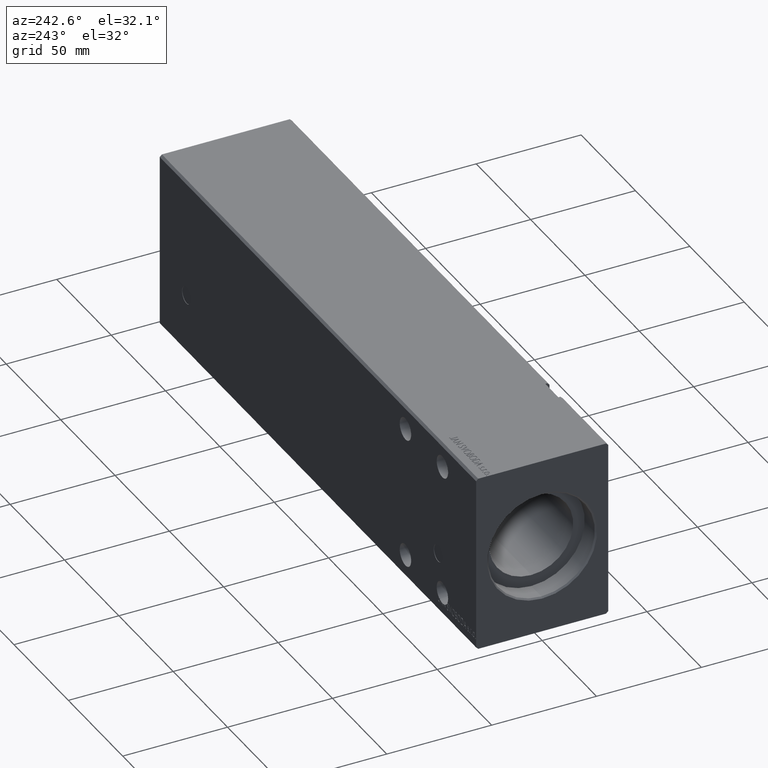
[diagram: clean part render]
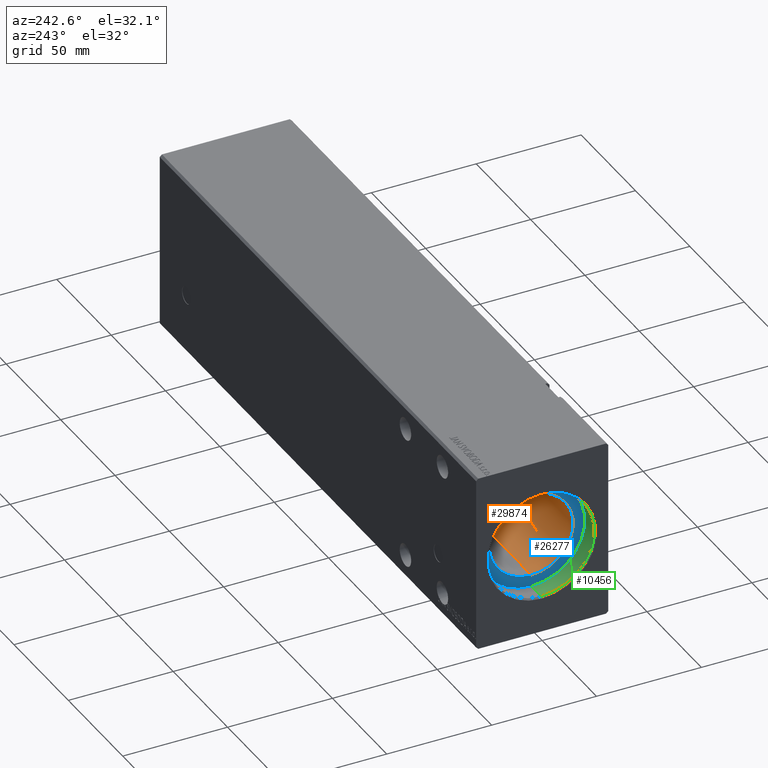
[diagram: same view with three faces highlighted in distinct colors, each labeled with its STEP entity id]
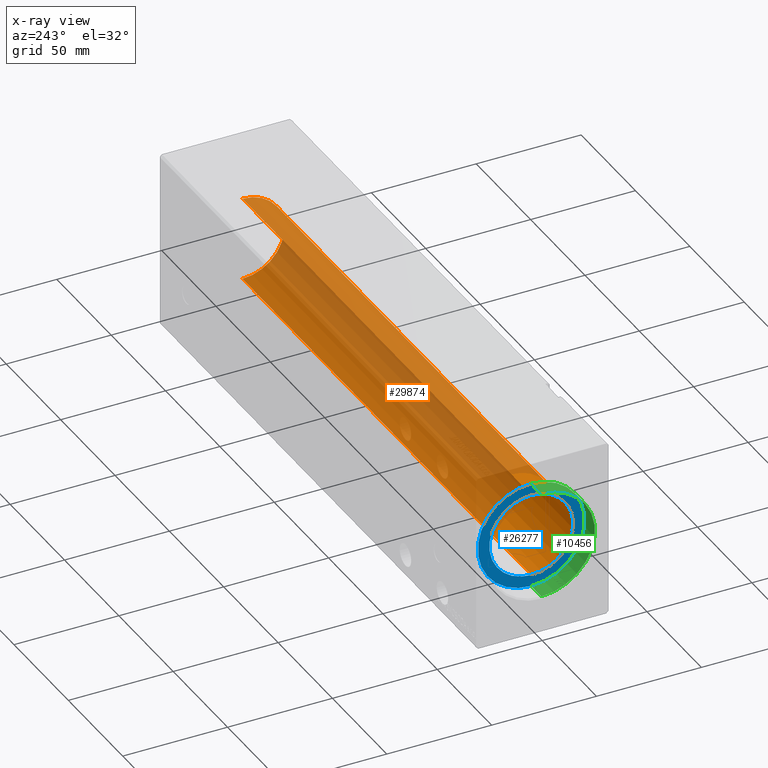
[diagram: x-ray of the same camera — body ghosted, the three highlighted faces saturated]
A machine part, auxiliary view with three faces highlighted in distinct colors.
The next image is the same camera in x-ray (body ghosted, the three faces saturated) — at least one of them is partly hidden behind the body in this view.
Their STEP definitions:

[orange] entity #29874 — the highlighted cylindrical surface (partial cylindrical patch) has radius 20 mm, axis along (-1, -0, -0).
#708 = EDGE_CURVE ( 'NONE', #29816, #12647, #29985, .T. ) ;
#1408 = CYLINDRICAL_SURFACE ( 'NONE', #4843, 20.00000000000000000 ) ;
#3083 = AXIS2_PLACEMENT_3D ( 'NONE', #9902, #9277, #35863 ) ;
#4251 = CIRCLE ( 'NONE', #21992, 20.00000000000000000 ) ;
#4824 = CARTESIAN_POINT ( 'NONE',  ( 275.6999999999999886, 0.000000000000000000, 0.000000000000000000 ) ) ;
#4843 = AXIS2_PLACEMENT_3D ( 'NONE', #4824, #30400, #37409 ) ;
#5266 = VECTOR ( 'NONE', #27009, 1000.000000000000000 ) ;
#7926 = CARTESIAN_POINT ( 'NONE',  ( 275.6999999999999886, 0.000000000000000000, 20.00000000000000000 ) ) ;
#9207 = CIRCLE ( 'NONE', #3083, 20.00000000000000000 ) ;
#9277 = DIRECTION ( 'NONE',  ( -1.000000000000000000, 0.000000000000000000, 0.000000000000000000 ) ) ;
#9663 = VECTOR ( 'NONE', #11561, 1000.000000000000000 ) ;
#9902 = CARTESIAN_POINT ( 'NONE',  ( 275.6999999999999886, 0.000000000000000000, 0.000000000000000000 ) ) ;
#10716 = ORIENTED_EDGE ( 'NONE', *, *, #27186, .F. ) ;
#11561 = DIRECTION ( 'NONE',  ( -1.000000000000000000, -0.000000000000000000, -0.000000000000000000 ) ) ;
#12584 = VERTEX_POINT ( 'NONE', #33227 ) ;
#12647 = VERTEX_POINT ( 'NONE', #21096 ) ;
#18264 = FACE_OUTER_BOUND ( 'NONE', #41758, .T. ) ;
#18644 = ORIENTED_EDGE ( 'NONE', *, *, #708, .T. ) ;
#21096 = CARTESIAN_POINT ( 'NONE',  ( 10.00000000000000888, 2.449293598294706513E-15, -20.00000000000000000 ) ) ;
#21992 = AXIS2_PLACEMENT_3D ( 'NONE', #23041, #35997, #34477 ) ;
#23041 = CARTESIAN_POINT ( 'NONE',  ( 10.00000000000000888, 0.000000000000000000, 0.000000000000000000 ) ) ;
#26806 = CARTESIAN_POINT ( 'NONE',  ( 275.6999999999999886, 2.449293598294706513E-15, -20.00000000000000000 ) ) ;
#27009 = DIRECTION ( 'NONE',  ( -1.000000000000000000, -0.000000000000000000, -0.000000000000000000 ) ) ;
#27186 = EDGE_CURVE ( 'NONE', #12584, #39690, #37095, .T. ) ;
#27213 = ORIENTED_EDGE ( 'NONE', *, *, #34000, .T. ) ;
#29816 = VERTEX_POINT ( 'NONE', #36763 ) ;
#29874 = ADVANCED_FACE ( 'NONE', ( #18264 ), #1408, .F. ) ;
#29985 = LINE ( 'NONE', #26806, #5266 ) ;
#30400 = DIRECTION ( 'NONE',  ( -1.000000000000000000, -0.000000000000000000, -0.000000000000000000 ) ) ;
#32941 = ORIENTED_EDGE ( 'NONE', *, *, #41781, .F. ) ;
#33227 = CARTESIAN_POINT ( 'NONE',  ( 275.6999999999999886, 0.000000000000000000, 20.00000000000000000 ) ) ;
#34000 = EDGE_CURVE ( 'NONE', #12647, #39690, #4251, .T. ) ;
#34477 = DIRECTION ( 'NONE',  ( 0.000000000000000000, 0.000000000000000000, 1.000000000000000000 ) ) ;
#35863 = DIRECTION ( 'NONE',  ( 0.000000000000000000, 0.000000000000000000, 1.000000000000000000 ) ) ;
#35997 = DIRECTION ( 'NONE',  ( -1.000000000000000000, 0.000000000000000000, 0.000000000000000000 ) ) ;
#36763 = CARTESIAN_POINT ( 'NONE',  ( 275.6999999999999886, 2.449293598294706513E-15, -20.00000000000000000 ) ) ;
#37095 = LINE ( 'NONE', #7926, #9663 ) ;
#37409 = DIRECTION ( 'NONE',  ( 0.000000000000000000, 0.000000000000000000, 1.000000000000000000 ) ) ;
#38803 = CARTESIAN_POINT ( 'NONE',  ( 10.00000000000000888, 0.000000000000000000, 20.00000000000000000 ) ) ;
#39690 = VERTEX_POINT ( 'NONE', #38803 ) ;
#41758 = EDGE_LOOP ( 'NONE', ( #32941, #18644, #27213, #10716 ) ) ;
#41781 = EDGE_CURVE ( 'NONE', #29816, #12584, #9207, .T. ) ;

[blue] entity #26277 — the highlighted planar face has unit normal (-1, 0, 0).
#1348 = CARTESIAN_POINT ( 'NONE',  ( 10.00000000000000000, 0.000000000000000000, 0.000000000000000000 ) ) ;
#1369 = DIRECTION ( 'NONE',  ( -1.000000000000000000, 0.000000000000000000, 0.000000000000000000 ) ) ;
#2161 = EDGE_CURVE ( 'NONE', #11304, #10718, #28446, .T. ) ;
#4117 = DIRECTION ( 'NONE',  ( 0.000000000000000000, 0.000000000000000000, 1.000000000000000000 ) ) ;
#4251 = CIRCLE ( 'NONE', #21992, 20.00000000000000000 ) ;
#4666 = AXIS2_PLACEMENT_3D ( 'NONE', #37159, #1369, #14398 ) ;
#4871 = CIRCLE ( 'NONE', #29403, 25.50000000000000000 ) ;
#5434 = EDGE_CURVE ( 'NONE', #39690, #12647, #17614, .T. ) ;
#5812 = EDGE_LOOP ( 'NONE', ( #29058, #10500 ) ) ;
#7530 = DIRECTION ( 'NONE',  ( -1.000000000000000000, 0.000000000000000000, 0.000000000000000000 ) ) ;
#8400 = FACE_OUTER_BOUND ( 'NONE', #5812, .T. ) ;
#10262 = CARTESIAN_POINT ( 'NONE',  ( 10.00000000000000000, 0.000000000000000000, 0.000000000000000000 ) ) ;
#10500 = ORIENTED_EDGE ( 'NONE', *, *, #31909, .T. ) ;
#10718 = VERTEX_POINT ( 'NONE', #16021 ) ;
#11304 = VERTEX_POINT ( 'NONE', #30298 ) ;
#12647 = VERTEX_POINT ( 'NONE', #21096 ) ;
#13473 = DIRECTION ( 'NONE',  ( -1.000000000000000000, 0.000000000000000000, 0.000000000000000000 ) ) ;
#14373 = DIRECTION ( 'NONE',  ( -1.000000000000000000, 0.000000000000000000, 0.000000000000000000 ) ) ;
#14398 = DIRECTION ( 'NONE',  ( 0.000000000000000000, 0.000000000000000000, 1.000000000000000000 ) ) ;
#14598 = DIRECTION ( 'NONE',  ( 0.000000000000000000, 0.000000000000000000, 1.000000000000000000 ) ) ;
#16021 = CARTESIAN_POINT ( 'NONE',  ( 10.00000000000000000, 3.122849337825750222E-15, -25.50000000000000000 ) ) ;
#17360 = PLANE ( 'NONE',  #25637 ) ;
#17386 = ORIENTED_EDGE ( 'NONE', *, *, #5434, .F. ) ;
#17614 = CIRCLE ( 'NONE', #4666, 20.00000000000000000 ) ;
#21096 = CARTESIAN_POINT ( 'NONE',  ( 10.00000000000000888, 2.449293598294706513E-15, -20.00000000000000000 ) ) ;
#21848 = ORIENTED_EDGE ( 'NONE', *, *, #34000, .F. ) ;
#21992 = AXIS2_PLACEMENT_3D ( 'NONE', #23041, #35997, #34477 ) ;
#23041 = CARTESIAN_POINT ( 'NONE',  ( 10.00000000000000888, 0.000000000000000000, 0.000000000000000000 ) ) ;
#25637 = AXIS2_PLACEMENT_3D ( 'NONE', #1348, #14373, #14598 ) ;
#26277 = ADVANCED_FACE ( 'NONE', ( #33944, #8400 ), #17360, .T. ) ;
#26415 = AXIS2_PLACEMENT_3D ( 'NONE', #10262, #13473, #36233 ) ;
#28446 = CIRCLE ( 'NONE', #26415, 25.50000000000000000 ) ;
#29058 = ORIENTED_EDGE ( 'NONE', *, *, #2161, .T. ) ;
#29403 = AXIS2_PLACEMENT_3D ( 'NONE', #32900, #7530, #4117 ) ;
#30298 = CARTESIAN_POINT ( 'NONE',  ( 10.00000000000000000, 0.000000000000000000, 25.50000000000000000 ) ) ;
#31270 = EDGE_LOOP ( 'NONE', ( #17386, #21848 ) ) ;
#31909 = EDGE_CURVE ( 'NONE', #10718, #11304, #4871, .T. ) ;
#32900 = CARTESIAN_POINT ( 'NONE',  ( 10.00000000000000000, 0.000000000000000000, 0.000000000000000000 ) ) ;
#33944 = FACE_BOUND ( 'NONE', #31270, .T. ) ;
#34000 = EDGE_CURVE ( 'NONE', #12647, #39690, #4251, .T. ) ;
#34477 = DIRECTION ( 'NONE',  ( 0.000000000000000000, 0.000000000000000000, 1.000000000000000000 ) ) ;
#35997 = DIRECTION ( 'NONE',  ( -1.000000000000000000, 0.000000000000000000, 0.000000000000000000 ) ) ;
#36233 = DIRECTION ( 'NONE',  ( 0.000000000000000000, 0.000000000000000000, 1.000000000000000000 ) ) ;
#37159 = CARTESIAN_POINT ( 'NONE',  ( 10.00000000000000888, 0.000000000000000000, 0.000000000000000000 ) ) ;
#38803 = CARTESIAN_POINT ( 'NONE',  ( 10.00000000000000888, 0.000000000000000000, 20.00000000000000000 ) ) ;
#39690 = VERTEX_POINT ( 'NONE', #38803 ) ;

[green] entity #10456 — the highlighted cylindrical surface (partial cylindrical patch) has radius 25.5 mm, axis along (-1, -0, -0).
#908 = CIRCLE ( 'NONE', #30182, 25.50000000000000000 ) ;
#1486 = CARTESIAN_POINT ( 'NONE',  ( 0.7000000000000061728, 0.000000000000000000, 0.000000000000000000 ) ) ;
#2870 = ORIENTED_EDGE ( 'NONE', *, *, #27588, .T. ) ;
#4086 = VERTEX_POINT ( 'NONE', #7000 ) ;
#4117 = DIRECTION ( 'NONE',  ( 0.000000000000000000, 0.000000000000000000, 1.000000000000000000 ) ) ;
#4378 = EDGE_CURVE ( 'NONE', #11304, #4086, #35282, .T. ) ;
#4871 = CIRCLE ( 'NONE', #29403, 25.50000000000000000 ) ;
#6189 = LINE ( 'NONE', #19201, #27356 ) ;
#6592 = CARTESIAN_POINT ( 'NONE',  ( 0.7000000000000061728, 3.122849337825750222E-15, -25.50000000000000000 ) ) ;
#7000 = CARTESIAN_POINT ( 'NONE',  ( 0.7000000000000061728, 0.000000000000000000, 25.50000000000000000 ) ) ;
#7530 = DIRECTION ( 'NONE',  ( -1.000000000000000000, 0.000000000000000000, 0.000000000000000000 ) ) ;
#9596 = AXIS2_PLACEMENT_3D ( 'NONE', #21608, #34783, #15431 ) ;
#10456 = ADVANCED_FACE ( 'NONE', ( #37771 ), #41159, .F. ) ;
#10718 = VERTEX_POINT ( 'NONE', #16021 ) ;
#11304 = VERTEX_POINT ( 'NONE', #30298 ) ;
#11895 = DIRECTION ( 'NONE',  ( -1.000000000000000000, -0.000000000000000000, -0.000000000000000000 ) ) ;
#14084 = DIRECTION ( 'NONE',  ( -1.000000000000000000, 0.000000000000000000, 0.000000000000000000 ) ) ;
#15431 = DIRECTION ( 'NONE',  ( 0.000000000000000000, 0.000000000000000000, 1.000000000000000000 ) ) ;
#16021 = CARTESIAN_POINT ( 'NONE',  ( 10.00000000000000000, 3.122849337825750222E-15, -25.50000000000000000 ) ) ;
#18265 = VECTOR ( 'NONE', #11895, 1000.000000000000000 ) ;
#19201 = CARTESIAN_POINT ( 'NONE',  ( 10.00000000000000000, 3.122849337825750222E-15, -25.50000000000000000 ) ) ;
#21106 = DIRECTION ( 'NONE',  ( 0.000000000000000000, 0.000000000000000000, -1.000000000000000000 ) ) ;
#21548 = ORIENTED_EDGE ( 'NONE', *, *, #31909, .F. ) ;
#21608 = CARTESIAN_POINT ( 'NONE',  ( 10.00000000000000000, 0.000000000000000000, 0.000000000000000000 ) ) ;
#27356 = VECTOR ( 'NONE', #32179, 1000.000000000000000 ) ;
#27448 = ORIENTED_EDGE ( 'NONE', *, *, #37998, .T. ) ;
#27588 = EDGE_CURVE ( 'NONE', #10718, #38163, #6189, .T. ) ;
#29403 = AXIS2_PLACEMENT_3D ( 'NONE', #32900, #7530, #4117 ) ;
#29884 = ORIENTED_EDGE ( 'NONE', *, *, #4378, .F. ) ;
#30182 = AXIS2_PLACEMENT_3D ( 'NONE', #1486, #14084, #21106 ) ;
#30298 = CARTESIAN_POINT ( 'NONE',  ( 10.00000000000000000, 0.000000000000000000, 25.50000000000000000 ) ) ;
#31909 = EDGE_CURVE ( 'NONE', #10718, #11304, #4871, .T. ) ;
#32179 = DIRECTION ( 'NONE',  ( -1.000000000000000000, -0.000000000000000000, -0.000000000000000000 ) ) ;
#32900 = CARTESIAN_POINT ( 'NONE',  ( 10.00000000000000000, 0.000000000000000000, 0.000000000000000000 ) ) ;
#34783 = DIRECTION ( 'NONE',  ( -1.000000000000000000, -0.000000000000000000, -0.000000000000000000 ) ) ;
#35282 = LINE ( 'NONE', #38486, #18265 ) ;
#37771 = FACE_OUTER_BOUND ( 'NONE', #39264, .T. ) ;
#37998 = EDGE_CURVE ( 'NONE', #38163, #4086, #908, .T. ) ;
#38163 = VERTEX_POINT ( 'NONE', #6592 ) ;
#38486 = CARTESIAN_POINT ( 'NONE',  ( 10.00000000000000000, 0.000000000000000000, 25.50000000000000000 ) ) ;
#39264 = EDGE_LOOP ( 'NONE', ( #21548, #2870, #27448, #29884 ) ) ;
#41159 = CYLINDRICAL_SURFACE ( 'NONE', #9596, 25.50000000000000000 ) ;